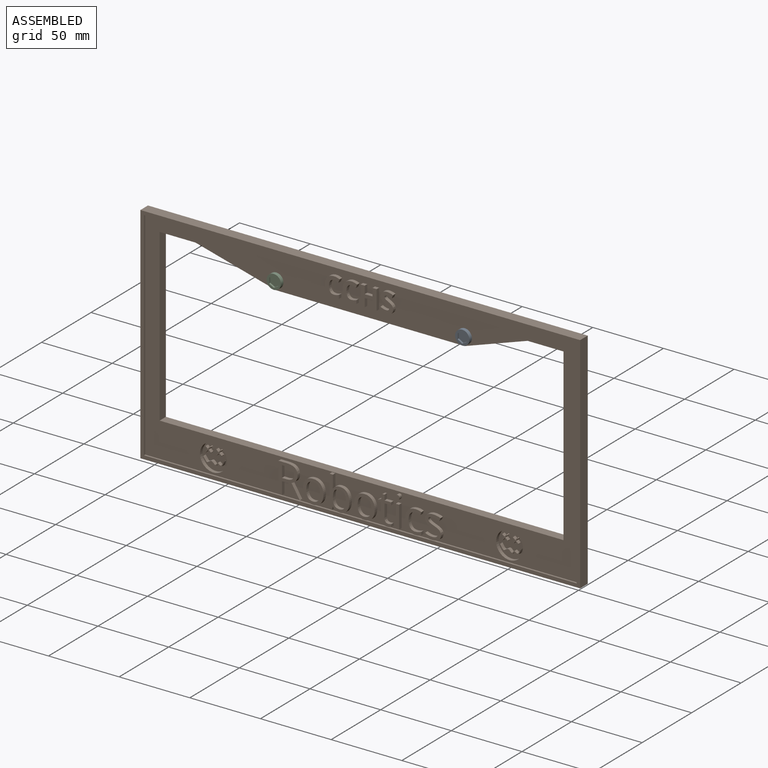
[diagram: assembled view]
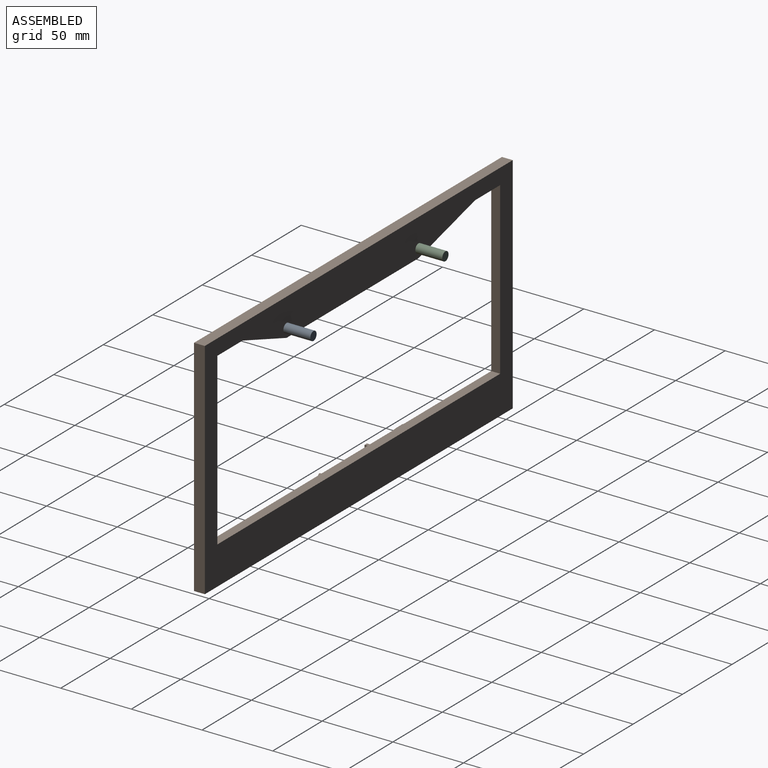
[diagram: assembled view, second angle]
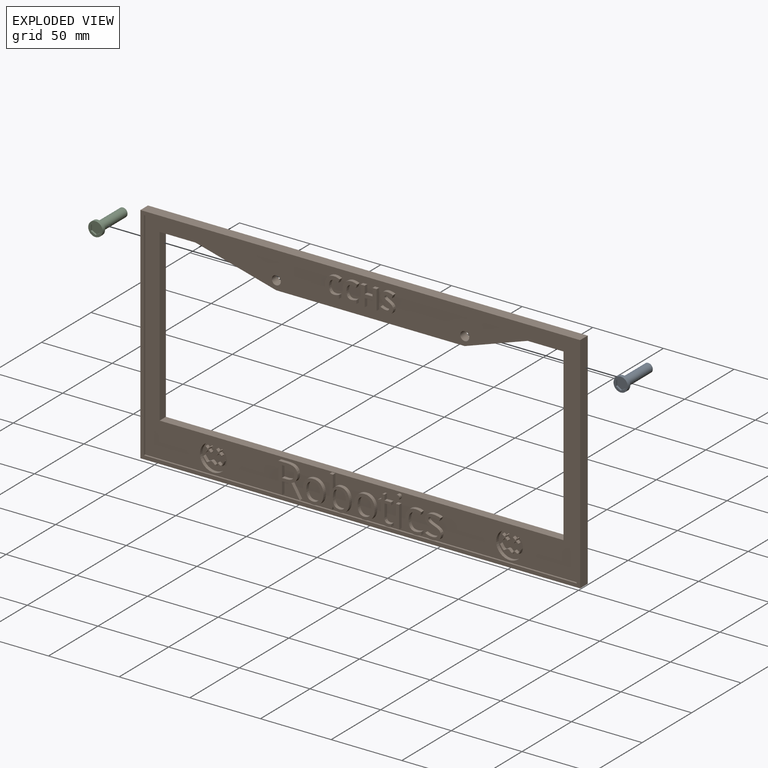
[diagram: exploded view]
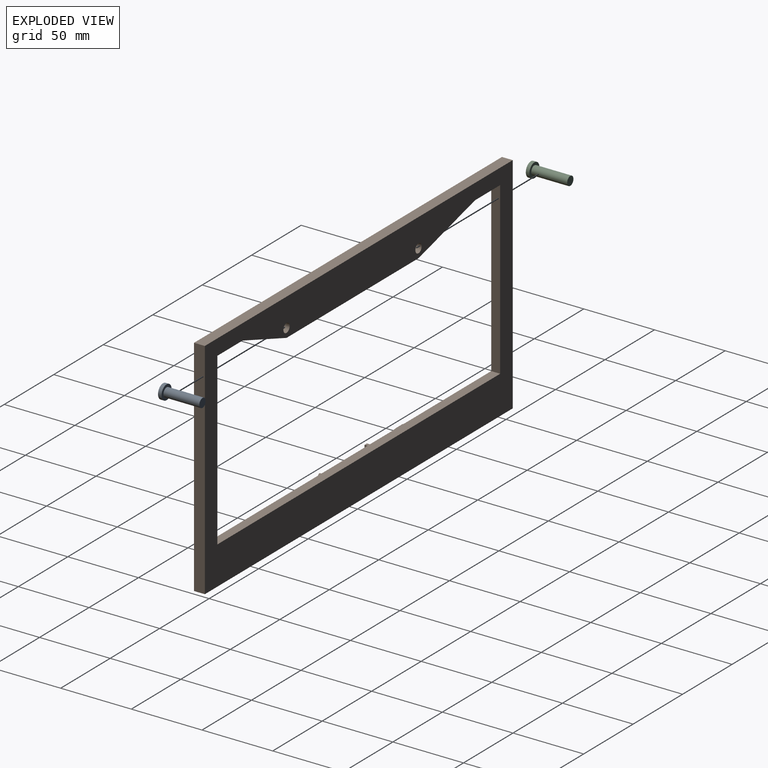
[diagram: exploded view, second angle]
ASSEMBLY  parts=3 mates=2
PART A: 12 faces, bbox 10.2x10.2x27.9 mm
  f0: cylinder r=3.17mm len=25.4mm, axis (0,0,-1), area 506.7mm2, adj f1,f4
  f1: plane 6.35x6.35mm, normal (0,0,-1), area 31.7mm2, adj f0
  f2: cylinder r=5.08mm len=10.16mm, axis (0,0,-1), area 81.1mm2, adj f3,f4
  f3: plane 10.16x10.16mm, normal (0,0,1), area 43.3mm2, adj f2,f5,f6,f7,f8,f9,f10
  f4: plane 10.16x10.16mm, normal (0,0,-1), area 49.4mm2, adj f0,f2
  f5: plane 3.3x1.91mm, normal (0.5,-0.87,0), area 4.8mm2, adj f3,f6,f10,f11
  f6: plane 3.81x1.27mm, normal (1,0,0), area 4.8mm2, adj f3,f5,f7,f11
  f7: plane 3.3x1.91mm, normal (0.5,0.87,0), area 4.8mm2, adj f3,f6,f8,f11
  f8: plane 3.3x1.91mm, normal (-0.5,0.87,0), area 4.8mm2, adj f3,f7,f9,f11
  f9: plane 3.81x1.27mm, normal (-1,0,0), area 4.8mm2, adj f3,f8,f10,f11
  f10: plane 3.3x1.91mm, normal (-0.5,-0.87,0), area 4.8mm2, adj f3,f5,f9,f11
  f11: plane 7.63x6.6mm, normal (0,0,1), area 37.8mm2, adj f5,f6,f7,f8,f9,f10
PART B: 314 faces, bbox 311.2x8.9x158.8 mm
  f0: plane 306.07x153.67mm, normal (0,-1,0), area 13356.9mm2, adj f4,f5,f6,f7,f8,f9,f10,f11
  f1: plane 311.15x7.62mm, normal (0,0,-1), area 2371mm2, adj f2,f12,f13,f311
  f2: plane 158.75x7.62mm, normal (1,0,0), area 1209.7mm2, adj f1,f3,f13,f311
  f3: plane 311.15x7.62mm, normal (0,0,1), area 2371mm2, adj f2,f12,f13,f311
  f4: plane 57.15x15.24mm, normal (-0.26,0,-0.97), area 375.6mm2, adj f0,f5,f11,f13
  f5: plane 133.35x6.35mm, normal (0,0,-1), area 846.8mm2, adj f0,f4,f6,f13
  f6: plane 44.45x15.24mm, normal (0.32,0,-0.95), area 298.4mm2, adj f0,f5,f7,f13
  f7: plane 25.4x6.35mm, normal (0,0,-1), area 161.3mm2, adj f0,f6,f8,f13
  f8: plane 120.65x6.35mm, normal (-1,0,0), area 766.1mm2, adj f0,f7,f9,f13
  f9: plane 285.75x6.35mm, normal (0,0,1), area 1814.5mm2, adj f0,f8,f10,f13
  f10: plane 120.65x6.35mm, normal (1,0,0), area 766.1mm2, adj f0,f9,f11,f13
  f11: plane 25.4x6.35mm, normal (0,0,-1), area 161.3mm2, adj f0,f4,f10,f13
  f12: plane 158.75x7.62mm, normal (-1,0,0), area 1209.7mm2, adj f1,f3,f13,f311
  f13: plane 311.15x158.75mm, normal (0,1,0), area 17662.4mm2, adj f1,f2,f3,f4,f5,f6,f7,f8
  f14: extruded ~2.57x2.54mm, area 7.6mm2, adj f0,f15,f28,f29
  f15: extruded ~2.54x1.54mm, area 4mm2, adj f0,f14,f16,f29
  f16: extruded ~2.54x1.57mm, area 4.3mm2, adj f0,f15,f17,f29
  f17: plane 2.54x2.39mm, normal (0.93,0,-0.37), area 6.5mm2, adj f0,f16,f18,f29
  f18: extruded ~4.06x2.54mm, area 10.7mm2, adj f0,f17,f19,f29
  f19: extruded ~3.46x2.54mm, area 9.2mm2, adj f0,f18,f20,f29
  f20: extruded ~2.54x2.49mm, area 8.7mm2, adj f0,f19,f21,f29
  f21: extruded ~3.79x2.54mm, area 9.9mm2, adj f0,f20,f22,f29
  f22: extruded ~5.27x2.54mm, area 14.3mm2, adj f0,f21,f23,f29
  f23: extruded ~4.63x2.54mm, area 13.1mm2, adj f0,f22,f24,f29
  f24: extruded ~3.81x2.54mm, area 9.9mm2, adj f0,f23,f25,f29
  f25: plane 2.54x2.46mm, normal (1,0,0), area 6.3mm2, adj f0,f24,f26,f29
  f26: extruded ~3.54x2.54mm, area 9.2mm2, adj f0,f25,f27,f29
  f27: extruded ~4.64x3.48mm, area 16.8mm2, adj f0,f26,f28,f29
  f28: extruded ~3.47x2.54mm, area 9.3mm2, adj f0,f14,f27,f29
  f29: plane 14.25x10.56mm, normal (0,-1,0), area 67.5mm2, adj f14,f15,f16,f17,f18,f19,f20,f21
  f30: extruded ~2.57x2.54mm, area 7.6mm2, adj f0,f31,f44,f45
  f31: extruded ~2.54x1.54mm, area 4mm2, adj f0,f30,f32,f45
  f32: extruded ~2.54x1.57mm, area 4.3mm2, adj f0,f31,f33,f45
  f33: plane 2.54x2.39mm, normal (0.93,0,-0.37), area 6.5mm2, adj f0,f32,f34,f45
  f34: extruded ~4.06x2.54mm, area 10.7mm2, adj f0,f33,f35,f45
  f35: extruded ~3.46x2.54mm, area 9.2mm2, adj f0,f34,f36,f45
  f36: extruded ~2.54x2.49mm, area 8.7mm2, adj f0,f35,f37,f45
  f37: extruded ~3.79x2.54mm, area 9.9mm2, adj f0,f36,f38,f45
  f38: extruded ~5.27x2.54mm, area 14.3mm2, adj f0,f37,f39,f45
  f39: extruded ~4.63x2.54mm, area 13.1mm2, adj f0,f38,f40,f45
  f40: extruded ~3.81x2.54mm, area 9.9mm2, adj f0,f39,f41,f45
  f41: plane 2.54x2.46mm, normal (1,0,0), area 6.3mm2, adj f0,f40,f42,f45
  f42: extruded ~3.54x2.54mm, area 9.2mm2, adj f0,f41,f43,f45
  f43: extruded ~4.64x3.48mm, area 16.8mm2, adj f0,f42,f44,f45
  f44: extruded ~3.47x2.54mm, area 9.3mm2, adj f0,f30,f43,f45
  f45: plane 14.25x10.56mm, normal (0,-1,0), area 67.5mm2, adj f30,f31,f32,f33,f34,f35,f36,f37
  f46: plane 2.93x2.54mm, normal (0,0,-1), area 7.4mm2, adj f0,f47,f57,f58
  f47: plane 13.87x2.54mm, normal (1,0,0), area 35.2mm2, adj f0,f46,f48,f58
  f48: plane 2.93x2.54mm, normal (0,0,1), area 7.4mm2, adj f0,f47,f49,f58
  f49: plane 5.44x2.54mm, normal (-1,0,0), area 13.8mm2, adj f0,f48,f50,f58
  f50: plane 5.49x2.54mm, normal (0,0,1), area 13.9mm2, adj f0,f49,f51,f58
  f51: plane 5.44x2.54mm, normal (1,0,0), area 13.8mm2, adj f0,f50,f52,f58
  f52: plane 2.94x2.54mm, normal (0,0,1), area 7.5mm2, adj f0,f51,f53,f58
  f53: plane 13.87x2.54mm, normal (-1,0,0), area 35.2mm2, adj f0,f52,f54,f58
  f54: plane 2.94x2.54mm, normal (0,0,-1), area 7.5mm2, adj f0,f53,f55,f58
  f55: plane 5.98x2.54mm, normal (1,0,0), area 15.2mm2, adj f0,f54,f56,f58
  f56: plane 5.49x2.54mm, normal (0,0,-1), area 13.9mm2, adj f0,f55,f57,f58
  f57: plane 5.98x2.54mm, normal (-1,0,0), area 15.2mm2, adj f0,f46,f56,f58
  f58: plane 13.87x11.36mm, normal (0,-1,0), area 94.8mm2, adj f46,f47,f48,f49,f50,f51,f52,f53
  f59: extruded ~2.96x2.54mm, area 8.6mm2, adj f0,f60,f86,f87
  f60: extruded ~2.54x2.29mm, area 6.2mm2, adj f0,f59,f61,f87
  f61: extruded ~2.67x2.54mm, area 8.3mm2, adj f0,f60,f62,f87
  f62: extruded ~2.54x1.86mm, area 5.3mm2, adj f0,f61,f63,f87
  f63: extruded ~2.54x0.57mm, area 2mm2, adj f0,f62,f64,f87
  f64: extruded ~2.54x0.68mm, area 1.8mm2, adj f0,f63,f65,f87
  f65: extruded ~2.54x1.01mm, area 2.9mm2, adj f0,f64,f66,f87
  f66: extruded ~2.54x1.28mm, area 3.5mm2, adj f0,f65,f67,f87
  f67: extruded ~2.54x1.43mm, area 3.7mm2, adj f0,f66,f68,f87
  f68: extruded ~2.54x1.84mm, area 4.9mm2, adj f0,f67,f69,f87
  f69: plane 2.54x2.29mm, normal (0.92,0,-0.38), area 6.3mm2, adj f0,f68,f70,f87
  f70: extruded ~2.54x2.05mm, area 5.5mm2, adj f0,f69,f71,f87
  f71: extruded ~2.54x2.06mm, area 5.3mm2, adj f0,f70,f72,f87
  f72: extruded ~3.45x2.54mm, area 9.3mm2, adj f0,f71,f73,f87
  f73: extruded ~2.89x2.54mm, area 8.3mm2, adj f0,f72,f74,f87
  f74: extruded ~2.54x1.71mm, area 4.5mm2, adj f0,f73,f75,f87
  f75: extruded ~2.54x1.28mm, area 4.2mm2, adj f0,f74,f76,f87
  f76: extruded ~2.54x1.9mm, area 5.7mm2, adj f0,f75,f77,f87
  f77: extruded ~2.54x1.8mm, area 5.2mm2, adj f0,f76,f78,f87
  f78: extruded ~2.54x0.67mm, area 2.3mm2, adj f0,f77,f79,f87
  f79: extruded ~2.54x0.73mm, area 2mm2, adj f0,f78,f80,f87
  f80: extruded ~2.54x1.1mm, area 3.2mm2, adj f0,f79,f81,f87
  f81: extruded ~2.54x1.48mm, area 3.9mm2, adj f0,f80,f82,f87
  f82: extruded ~2.54x1.78mm, area 4.6mm2, adj f0,f81,f83,f87
  f83: extruded ~2.54x2.37mm, area 6.4mm2, adj f0,f82,f84,f87
  f84: plane 2.73x2.54mm, normal (-1,0,0), area 6.9mm2, adj f0,f83,f85,f87
  f85: extruded ~3.93x2.54mm, area 10.3mm2, adj f0,f84,f86,f87
  f86: extruded ~3.76x2.54mm, area 10.1mm2, adj f0,f59,f85,f87
  f87: plane 14.25x9.04mm, normal (0,-1,0), area 72.5mm2, adj f59,f60,f61,f62,f63,f64,f65,f66
  f88: plane 3.4x2.54mm, normal (0,0,1), area 8.6mm2, adj f89,f105,f106,f107
  f89: plane 8.14x2.54mm, normal (1,0,0), area 20.7mm2, adj f88,f90,f106,f107
  f90: plane 3.22x2.54mm, normal (0,0,-1), area 8.2mm2, adj f89,f91,f106,f107
  f91: extruded ~4x2.54mm, area 10.6mm2, adj f90,f92,f106,f107
  f92: extruded ~3.04x2.54mm, area 8.7mm2, adj f91,f93,f106,f107
  f93: extruded ~3.13x2.54mm, area 8.8mm2, adj f92,f105,f106,f107
  f94: plane 8.86x2.54mm, normal (1,0,0), area 22.5mm2, adj f0,f95,f104,f106
  f95: plane 4.45x2.54mm, normal (0,0,-1), area 11.3mm2, adj f0,f94,f96,f106
  f96: plane 8.86x5.16mm, normal (-0.86,0,-0.5), area 26mm2, adj f0,f95,f97,f106
  f97: plane 2.93x2.54mm, normal (0,0,-1), area 7.4mm2, adj f0,f96,f98,f106
  f98: plane 9.57x5.79mm, normal (0.86,0,0.52), area 28.4mm2, adj f0,f97,f99,f106
  f99: extruded ~5.71x4.28mm, area 19.6mm2, adj f0,f98,f100,f106
  f100: extruded ~4.52x2.54mm, area 12.9mm2, adj f0,f99,f101,f106
  f101: extruded ~5.79x2.54mm, area 15.5mm2, adj f0,f100,f102,f106
  f102: plane 5.84x2.54mm, normal (0,0,1), area 14.8mm2, adj f0,f101,f103,f106
  f103: plane 21.3x2.54mm, normal (-1,0,0), area 54.1mm2, adj f0,f102,f104,f106
  f104: plane 2.54x2.48mm, normal (0,0,-1), area 6.3mm2, adj f0,f94,f103,f106
  f105: extruded ~3.84x2.54mm, area 10.3mm2, adj f88,f93,f106,f107
  f106: plane 21.3x15.01mm, normal (0,-1,0), area 136mm2, adj f88,f89,f90,f91,f92,f93,f94,f95
  f107: plane 8.47x8.14mm, normal (0,-1,0), area 62.3mm2, adj f88,f89,f90,f91,f92,f93,f105
  f108: extruded ~4.66x2.54mm, area 12.5mm2, adj f109,f124,f125,f126
  f109: extruded ~4.65x2.54mm, area 12.4mm2, adj f108,f110,f125,f126
  f110: extruded ~3.58x2.54mm, area 10.3mm2, adj f109,f111,f125,f126
  f111: extruded ~3.64x2.54mm, area 10.5mm2, adj f110,f112,f125,f126
  f112: extruded ~4.62x2.54mm, area 12.4mm2, adj f111,f113,f125,f126
  f113: extruded ~4.67x2.54mm, area 12.5mm2, adj f112,f114,f125,f126
  f114: extruded ~3.61x2.54mm, area 10.4mm2, adj f113,f124,f125,f126
  f115: extruded ~6.1x2.54mm, area 16.7mm2, adj f0,f116,f123,f125
  f116: extruded ~6.03x2.54mm, area 16.5mm2, adj f0,f115,f117,f125
  f117: extruded ~5.32x2.54mm, area 15.1mm2, adj f0,f116,f118,f125
  f118: extruded ~5.42x2.54mm, area 15.3mm2, adj f0,f117,f119,f125
  f119: extruded ~6.08x2.54mm, area 16.6mm2, adj f0,f118,f120,f125
  f120: extruded ~4.4x2.54mm, area 11.5mm2, adj f0,f119,f121,f125
  f121: extruded ~2.89x2.56mm, area 9.9mm2, adj f0,f120,f122,f125
  f122: extruded ~3.8x2.54mm, area 10.1mm2, adj f0,f121,f123,f125
  f123: extruded ~5.43x2.54mm, area 15.4mm2, adj f0,f115,f122,f125
  f124: extruded ~3.6x2.54mm, area 10.4mm2, adj f108,f114,f125,f126
  f125: plane 16.55x14.67mm, normal (0,-1,0), area 97.9mm2, adj f108,f109,f110,f111,f112,f113,f114,f115
  f126: plane 12.47x9.66mm, normal (0,-1,0), area 99.9mm2, adj f108,f109,f110,f111,f112,f113,f114,f124
  f127: extruded ~3.57x2.54mm, area 10.1mm2, adj f128,f149,f150,f151
  f128: extruded ~3.38x2.54mm, area 9.8mm2, adj f127,f129,f150,f151
  f129: extruded ~4.65x2.54mm, area 12.3mm2, adj f128,f130,f150,f151
  f130: extruded ~4.67x2.54mm, area 12.4mm2, adj f129,f131,f150,f151
  f131: extruded ~3.32x2.54mm, area 9.8mm2, adj f130,f132,f150,f151
  f132: extruded ~3.6x2.54mm, area 10.2mm2, adj f131,f133,f150,f151
  f133: extruded ~4.82x2.54mm, area 12.8mm2, adj f132,f149,f150,f151
  f134: extruded ~4.89x2.54mm, area 14.1mm2, adj f0,f135,f148,f150
  f135: extruded ~5.01x2.54mm, area 14.7mm2, adj f0,f134,f136,f150
  f136: plane 2.54x0.12mm, normal (0,0,1), area 0.3mm2, adj f0,f135,f137,f150
  f137: extruded ~3.32x2.54mm, area 8.4mm2, adj f0,f136,f138,f150
  f138: plane 5.51x2.54mm, normal (1,0,0), area 14mm2, adj f0,f137,f139,f150
  f139: plane 2.54x2.42mm, normal (0,0,1), area 6.1mm2, adj f0,f138,f140,f150
  f140: plane 22.67x2.54mm, normal (-1,0,0), area 57.6mm2, adj f0,f139,f141,f150
  f141: plane 2.54x1.73mm, normal (0,0,-1), area 4.4mm2, adj f0,f140,f142,f150
  f142: plane 2.54x2.06mm, normal (0.97,0,-0.24), area 5.4mm2, adj f0,f141,f143,f150
  f143: plane 2.54x0.18mm, normal (0,0,-1), area 0.4mm2, adj f0,f142,f144,f150
  f144: extruded ~2.54x2.16mm, area 7.2mm2, adj f0,f143,f145,f150
  f145: extruded ~2.85x2.54mm, area 7.4mm2, adj f0,f144,f146,f150
  f146: extruded ~4.87x2.54mm, area 14.1mm2, adj f0,f145,f147,f150
  f147: extruded ~6.11x2.54mm, area 16.5mm2, adj f0,f146,f148,f150
  f148: extruded ~6.08x2.54mm, area 16.4mm2, adj f0,f134,f147,f150
  f149: extruded ~4.79x2.54mm, area 12.7mm2, adj f127,f133,f150,f151
  f150: plane 22.96x14.06mm, normal (0,-1,0), area 123.9mm2, adj f127,f128,f129,f130,f131,f132,f133,f134
  f151: plane 12.47x9.13mm, normal (0,-1,0), area 95.9mm2, adj f127,f128,f129,f130,f131,f132,f133,f149
  f152: extruded ~4.66x2.54mm, area 12.5mm2, adj f153,f168,f169,f170
  f153: extruded ~4.65x2.54mm, area 12.4mm2, adj f152,f154,f169,f170
  f154: extruded ~3.58x2.54mm, area 10.3mm2, adj f153,f155,f169,f170
  f155: extruded ~3.64x2.54mm, area 10.5mm2, adj f154,f156,f169,f170
  f156: extruded ~4.62x2.54mm, area 12.4mm2, adj f155,f157,f169,f170
  f157: extruded ~4.67x2.54mm, area 12.5mm2, adj f156,f158,f169,f170
  f158: extruded ~3.61x2.54mm, area 10.4mm2, adj f157,f168,f169,f170
  f159: extruded ~6.1x2.54mm, area 16.7mm2, adj f0,f160,f167,f169
  f160: extruded ~6.03x2.54mm, area 16.5mm2, adj f0,f159,f161,f169
  f161: extruded ~5.32x2.54mm, area 15.1mm2, adj f0,f160,f162,f169
  f162: extruded ~5.42x2.54mm, area 15.3mm2, adj f0,f161,f163,f169
  f163: extruded ~6.08x2.54mm, area 16.6mm2, adj f0,f162,f164,f169
  f164: extruded ~4.4x2.54mm, area 11.5mm2, adj f0,f163,f165,f169
  f165: extruded ~2.89x2.56mm, area 9.9mm2, adj f0,f164,f166,f169
  f166: extruded ~3.8x2.54mm, area 10.1mm2, adj f0,f165,f167,f169
  f167: extruded ~5.43x2.54mm, area 15.4mm2, adj f0,f159,f166,f169
  f168: extruded ~3.6x2.54mm, area 10.4mm2, adj f152,f158,f169,f170
  f169: plane 16.55x14.67mm, normal (0,-1,0), area 97.9mm2, adj f152,f153,f154,f155,f156,f157,f158,f159
  f170: plane 12.47x9.66mm, normal (0,-1,0), area 99.9mm2, adj f152,f153,f154,f155,f156,f157,f158,f168
  f171: extruded ~2.54x1.24mm, area 3.2mm2, adj f0,f172,f189,f190
  f172: extruded ~2.54x1.88mm, area 5.3mm2, adj f0,f171,f173,f190
  f173: extruded ~2.54x2.21mm, area 6mm2, adj f0,f172,f174,f190
  f174: plane 9.4x2.54mm, normal (1,0,0), area 23.9mm2, adj f0,f173,f175,f190
  f175: plane 4.63x2.54mm, normal (0,0,-1), area 11.8mm2, adj f0,f174,f176,f190
  f176: plane 2.54x1.88mm, normal (1,0,0), area 4.8mm2, adj f0,f175,f177,f190
  f177: plane 4.63x2.54mm, normal (0,0,1), area 11.8mm2, adj f0,f176,f178,f190
  f178: plane 3.7x2.54mm, normal (1,0,0), area 9.4mm2, adj f0,f177,f179,f190
  f179: plane 2.54x1.4mm, normal (0,0,1), area 3.6mm2, adj f0,f178,f180,f190
  f180: plane 3.41x2.54mm, normal (-0.96,0,0.29), area 9mm2, adj f0,f179,f181,f190
  f181: plane 2.54x2.29mm, normal (-0.4,0,0.92), area 6.4mm2, adj f0,f180,f182,f190
  f182: plane 2.54x1.17mm, normal (-1,0,0), area 3mm2, adj f0,f181,f183,f190
  f183: plane 2.54x2.29mm, normal (0,0,-1), area 5.8mm2, adj f0,f182,f184,f190
  f184: plane 9.5x2.54mm, normal (-1,0,0), area 24.1mm2, adj f0,f183,f185,f190
  f185: extruded ~4.88x4.63mm, area 19.6mm2, adj f0,f184,f186,f190
  f186: extruded ~2.54x1.38mm, area 3.5mm2, adj f0,f185,f187,f190
  f187: extruded ~2.54x1.16mm, area 3.1mm2, adj f0,f186,f188,f190
  f188: plane 2.54x1.85mm, normal (1,0,0), area 4.7mm2, adj f0,f187,f189,f190
  f189: extruded ~2.54x0.95mm, area 2.5mm2, adj f0,f171,f188,f190
  f190: plane 19.96x9.45mm, normal (0,-1,0), area 66mm2, adj f171,f172,f173,f174,f175,f176,f177,f178
  f191: plane 2.54x2.42mm, normal (0,0,-1), area 6.1mm2, adj f0,f192,f194,f195
  f192: plane 15.97x2.54mm, normal (1,0,0), area 40.6mm2, adj f0,f191,f193,f195
  f193: plane 2.54x2.42mm, normal (0,0,1), area 6.1mm2, adj f0,f192,f194,f195
  f194: plane 15.97x2.54mm, normal (-1,0,0), area 40.6mm2, adj f0,f191,f193,f195
  f195: plane 15.97x2.42mm, normal (0,-1,0), area 38.6mm2, adj f191,f192,f193,f194
  f196: extruded ~2.54x1.22mm, area 3.4mm2, adj f0,f197,f203,f204
  f197: extruded ~2.54x1.22mm, area 3.3mm2, adj f0,f196,f198,f204
  f198: extruded ~2.54x1.02mm, area 2.9mm2, adj f0,f197,f199,f204
  f199: extruded ~2.54x1mm, area 2.8mm2, adj f0,f198,f200,f204
  f200: extruded ~2.54x1.22mm, area 3.4mm2, adj f0,f199,f201,f204
  f201: extruded ~2.54x1.21mm, area 3.3mm2, adj f0,f200,f202,f204
  f202: extruded ~2.54x1mm, area 2.8mm2, adj f0,f201,f203,f204
  f203: extruded ~2.54x1.02mm, area 2.9mm2, adj f0,f196,f202,f204
  f204: plane 3.22x2.86mm, normal (0,-1,0), area 7.5mm2, adj f196,f197,f198,f199,f200,f201,f202,f203
  f205: extruded ~5.37x2.54mm, area 15.2mm2, adj f0,f206,f219,f220
  f206: extruded ~4.03x2.54mm, area 10.6mm2, adj f0,f205,f207,f220
  f207: plane 2.54x2.14mm, normal (1,0,0), area 5.4mm2, adj f0,f206,f208,f220
  f208: extruded ~4.09x2.54mm, area 10.7mm2, adj f0,f207,f209,f220
  f209: extruded ~3.52x2.54mm, area 10.2mm2, adj f0,f208,f210,f220
  f210: extruded ~4.52x2.54mm, area 12.1mm2, adj f0,f209,f211,f220
  f211: extruded ~6.21x4.87mm, area 22.9mm2, adj f0,f210,f212,f220
  f212: extruded ~2.54x1.67mm, area 4.3mm2, adj f0,f211,f213,f220
  f213: extruded ~2.54x1.75mm, area 4.6mm2, adj f0,f212,f214,f220
  f214: plane 2.54x2.05mm, normal (0.94,0,-0.34), area 5.5mm2, adj f0,f213,f215,f220
  f215: extruded ~2.54x1.8mm, area 4.8mm2, adj f0,f214,f216,f220
  f216: extruded ~2.54x2.3mm, area 5.9mm2, adj f0,f215,f217,f220
  f217: extruded ~5.5x2.54mm, area 15.5mm2, adj f0,f216,f218,f220
  f218: extruded ~6.19x2.54mm, area 16.8mm2, adj f0,f217,f219,f220
  f219: extruded ~6.04x2.54mm, area 16.5mm2, adj f0,f205,f218,f220
  f220: plane 16.55x11.54mm, normal (0,-1,0), area 67.6mm2, adj f205,f206,f207,f208,f209,f210,f211,f212
  f221: extruded ~3.44x2.54mm, area 10.1mm2, adj f0,f222,f245,f246
  f222: extruded ~2.64x2.54mm, area 7.4mm2, adj f0,f221,f223,f246
  f223: extruded ~3.84x2.54mm, area 11.2mm2, adj f0,f222,f224,f246
  f224: extruded ~2.8x2.54mm, area 7.7mm2, adj f0,f223,f225,f246
  f225: extruded ~2.54x1.06mm, area 3.5mm2, adj f0,f224,f226,f246
  f226: extruded ~2.54x1.09mm, area 2.9mm2, adj f0,f225,f227,f246
  f227: extruded ~2.54x1.49mm, area 4.6mm2, adj f0,f226,f228,f246
  f228: extruded ~2.59x2.54mm, area 6.8mm2, adj f0,f227,f229,f246
  f229: extruded ~4.35x2.54mm, area 11.4mm2, adj f0,f228,f230,f246
  f230: plane 2.54x1.97mm, normal (0.92,0,-0.4), area 5.5mm2, adj f0,f229,f231,f246
  f231: extruded ~5.04x2.54mm, area 13.2mm2, adj f0,f230,f232,f246
  f232: extruded ~4.35x2.54mm, area 11.6mm2, adj f0,f231,f233,f246
  f233: extruded ~3.08x2.54mm, area 9.2mm2, adj f0,f232,f234,f246
  f234: extruded ~2.54x1.88mm, area 5mm2, adj f0,f233,f235,f246
  f235: extruded ~2.54x1.41mm, area 5.1mm2, adj f0,f234,f236,f246
  f236: extruded ~3.17x2.54mm, area 8.9mm2, adj f0,f235,f237,f246
  f237: extruded ~3.16x2.54mm, area 9mm2, adj f0,f236,f238,f246
  f238: extruded ~2.54x1.59mm, area 4.7mm2, adj f0,f237,f239,f246
  f239: extruded ~2.54x1.84mm, area 5.6mm2, adj f0,f238,f240,f246
  f240: extruded ~2.91x2.54mm, area 7.6mm2, adj f0,f239,f241,f246
  f241: extruded ~2.54x2.54mm, area 6.5mm2, adj f0,f240,f242,f246
  f242: extruded ~2.54x2.47mm, area 6.7mm2, adj f0,f241,f243,f246
  f243: plane 2.54x2.24mm, normal (-1,0,0), area 5.7mm2, adj f0,f242,f244,f246
  f244: extruded ~4.95x2.54mm, area 13mm2, adj f0,f243,f245,f246
  f245: extruded ~4.66x2.54mm, area 12.4mm2, adj f0,f221,f244,f246
  f246: plane 16.55x11.32mm, normal (0,-1,0), area 78.2mm2, adj f221,f222,f223,f224,f225,f226,f227,f228
  f247: plane 2.54x1.76mm, normal (-0.63,0,-0.77), area 5.8mm2, adj f248,f270,f273,f275
  f248: plane 2.54x1.7mm, normal (0.77,0,-0.63), area 5.6mm2, adj f247,f249,f273,f275
  f249: plane 2.54x0.49mm, normal (-0.63,0,-0.77), area 1.6mm2, adj f248,f250,f273,f275
  f250: plane 2.54x1.7mm, normal (-0.77,0,0.63), area 5.6mm2, adj f249,f251,f273,f275
  f251: plane 2.54x1.68mm, normal (-0.63,0,-0.77), area 5.5mm2, adj f250,f252,f273,f275
  f252: plane 2.54x0.49mm, normal (-0.77,0,0.63), area 1.6mm2, adj f251,f253,f273,f275
  f253: plane 2.54x1.68mm, normal (0.63,0,0.77), area 5.5mm2, adj f252,f254,f273,f275
  f254: plane 2.54x1.75mm, normal (-0.77,0,0.63), area 5.7mm2, adj f253,f255,f273,f275
  f255: plane 2.54x0.49mm, normal (0.63,0,0.77), area 1.6mm2, adj f254,f256,f273,f275
  f256: plane 2.54x1.75mm, normal (0.77,0,-0.63), area 5.7mm2, adj f255,f257,f273,f275
  f257: plane 2.54x1.76mm, normal (0.63,0,0.77), area 5.8mm2, adj f256,f270,f273,f275
  f258: plane 2.54x1.82mm, normal (-0.63,0,-0.77), area 6mm2, adj f259,f271,f273,f274
  f259: plane 2.54x1.8mm, normal (0.77,0,-0.63), area 5.9mm2, adj f258,f260,f273,f274
  f260: plane 2.54x0.49mm, normal (-0.63,0,-0.77), area 1.6mm2, adj f259,f261,f273,f274
  f261: plane 2.54x1.8mm, normal (-0.77,0,0.63), area 5.9mm2, adj f260,f262,f273,f274
  f262: plane 2.54x1.62mm, normal (-0.63,0,-0.77), area 5.3mm2, adj f261,f263,f273,f274
  f263: plane 2.54x0.49mm, normal (-0.77,0,0.63), area 1.6mm2, adj f262,f264,f273,f274
  f264: plane 2.54x1.62mm, normal (0.63,0,0.77), area 5.3mm2, adj f263,f265,f273,f274
  f265: plane 2.54x1.65mm, normal (-0.77,0,0.63), area 5.4mm2, adj f264,f266,f273,f274
  f266: plane 2.54x0.49mm, normal (0.63,0,0.77), area 1.6mm2, adj f265,f267,f273,f274
  f267: plane 2.54x1.65mm, normal (0.77,0,-0.63), area 5.4mm2, adj f266,f268,f273,f274
  f268: plane 2.54x1.82mm, normal (0.63,0,0.77), area 6mm2, adj f267,f271,f273,f274
  f269: extruded ~14.48x4.33mm, area 109.4mm2, adj f273,f305
  f270: plane 2.54x0.49mm, normal (0.77,0,-0.63), area 1.6mm2, adj f247,f257,f273,f275
  f271: plane 2.54x0.49mm, normal (0.77,0,-0.63), area 1.6mm2, adj f258,f268,f273,f274
  f272: cylinder r=9.53mm len=19.05mm, axis (0,-1,0), area 152mm2, adj f0,f273
  f273: plane 19.05x19.05mm, normal (0,-1,0), area 259.4mm2, adj f247,f248,f249,f250,f251,f252,f253,f254
  f274: plane 4.34x4.34mm, normal (0,-1,0), area 6.1mm2, adj f258,f259,f260,f261,f262,f263,f264,f265
  f275: plane 4.34x4.34mm, normal (0,-1,0), area 6.1mm2, adj f247,f248,f249,f250,f251,f252,f253,f254
  f276: plane 2.54x1.76mm, normal (-0.63,0,-0.77), area 5.8mm2, adj f277,f299,f302,f304
  f277: plane 2.54x1.7mm, normal (0.77,0,-0.63), area 5.6mm2, adj f276,f278,f302,f304
  f278: plane 2.54x0.49mm, normal (-0.63,0,-0.77), area 1.6mm2, adj f277,f279,f302,f304
  f279: plane 2.54x1.7mm, normal (-0.77,0,0.63), area 5.6mm2, adj f278,f280,f302,f304
  f280: plane 2.54x1.68mm, normal (-0.63,0,-0.77), area 5.5mm2, adj f279,f281,f302,f304
  f281: plane 2.54x0.49mm, normal (-0.77,0,0.63), area 1.6mm2, adj f280,f282,f302,f304
  f282: plane 2.54x1.68mm, normal (0.63,0,0.77), area 5.5mm2, adj f281,f283,f302,f304
  f283: plane 2.54x1.75mm, normal (-0.77,0,0.63), area 5.7mm2, adj f282,f284,f302,f304
  f284: plane 2.54x0.49mm, normal (0.63,0,0.77), area 1.6mm2, adj f283,f285,f302,f304
  f285: plane 2.54x1.75mm, normal (0.77,0,-0.63), area 5.7mm2, adj f284,f286,f302,f304
  f286: plane 2.54x1.76mm, normal (0.63,0,0.77), area 5.8mm2, adj f285,f299,f302,f304
  f287: plane 2.54x1.82mm, normal (-0.63,0,-0.77), area 6mm2, adj f288,f300,f302,f303
  f288: plane 2.54x1.8mm, normal (0.77,0,-0.63), area 5.9mm2, adj f287,f289,f302,f303
  f289: plane 2.54x0.49mm, normal (-0.63,0,-0.77), area 1.6mm2, adj f288,f290,f302,f303
  f290: plane 2.54x1.8mm, normal (-0.77,0,0.63), area 5.9mm2, adj f289,f291,f302,f303
  f291: plane 2.54x1.62mm, normal (-0.63,0,-0.77), area 5.3mm2, adj f290,f292,f302,f303
  f292: plane 2.54x0.49mm, normal (-0.77,0,0.63), area 1.6mm2, adj f291,f293,f302,f303
  f293: plane 2.54x1.62mm, normal (0.63,0,0.77), area 5.3mm2, adj f292,f294,f302,f303
  f294: plane 2.54x1.65mm, normal (-0.77,0,0.63), area 5.4mm2, adj f293,f295,f302,f303
  f295: plane 2.54x0.49mm, normal (0.63,0,0.77), area 1.6mm2, adj f294,f296,f302,f303
  f296: plane 2.54x1.65mm, normal (0.77,0,-0.63), area 5.4mm2, adj f295,f297,f302,f303
  f297: plane 2.54x1.82mm, normal (0.63,0,0.77), area 6mm2, adj f296,f300,f302,f303
  f298: extruded ~14.48x4.33mm, area 109.4mm2, adj f302,f306
  f299: plane 2.54x0.49mm, normal (0.77,0,-0.63), area 1.6mm2, adj f276,f286,f302,f304
  f300: plane 2.54x0.49mm, normal (0.77,0,-0.63), area 1.6mm2, adj f287,f297,f302,f303
  f301: cylinder r=9.53mm len=19.05mm, axis (0,-1,0), area 152mm2, adj f0,f302
  f302: plane 19.05x19.05mm, normal (0,-1,0), area 259.4mm2, adj f276,f277,f278,f279,f280,f281,f282,f283
  f303: plane 4.34x4.34mm, normal (0,-1,0), area 6.1mm2, adj f287,f288,f289,f290,f291,f292,f293,f294
  f304: plane 4.34x4.34mm, normal (0,-1,0), area 6.1mm2, adj f276,f277,f278,f279,f280,f281,f282,f283
  f305: plane 14.8x4.94mm, normal (0,-1,0), area 13.4mm2, adj f269
  f306: plane 14.8x4.94mm, normal (0,-1,0), area 13.4mm2, adj f298
  f307: plane 306.07x1.27mm, normal (0,0,-1), area 388.7mm2, adj f0,f308,f310,f311
  f308: plane 153.67x1.27mm, normal (-1,0,0), area 195.2mm2, adj f0,f307,f309,f311
  f309: plane 306.07x1.27mm, normal (0,0,1), area 388.7mm2, adj f0,f308,f310,f311
  f310: plane 153.67x1.27mm, normal (1,0,0), area 195.2mm2, adj f0,f307,f309,f311
  f311: plane 311.15x158.75mm, normal (0,-1,0), area 2361.3mm2, adj f1,f2,f3,f12,f307,f308,f309,f310
  f312: cylinder r=3.17mm len=6.35mm, axis (0,-1,0), area 126.7mm2, adj f0,f13
  f313: cylinder r=3.17mm len=6.35mm, axis (0,-1,0), area 126.7mm2, adj f0,f13
PART C: same geometry as A
PLACE A rot(axis=(1,0,0),90deg) t=(73.22,20.07,53.27)mm
PLACE B t=(0.19,1.02,-6.1)mm
PLACE C rot(axis=(1,0,0),90deg) t=(-60.13,20.07,53.27)mm
MATE fastened C.f2 <-> B.f313  axis (0,1,0) through (-60.13,-5.33,53.27)mm
MATE fastened A.f0 <-> B.f312  axis (0,1,0) through (73.22,-5.33,53.27)mm
